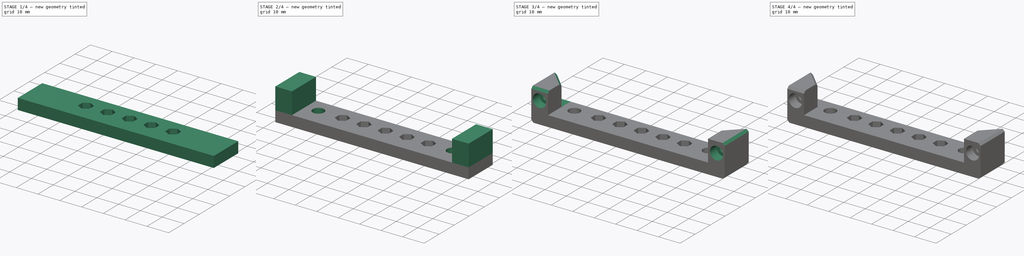
[diagram: build sequence overview — one tinted view per stage of 4, left to right]
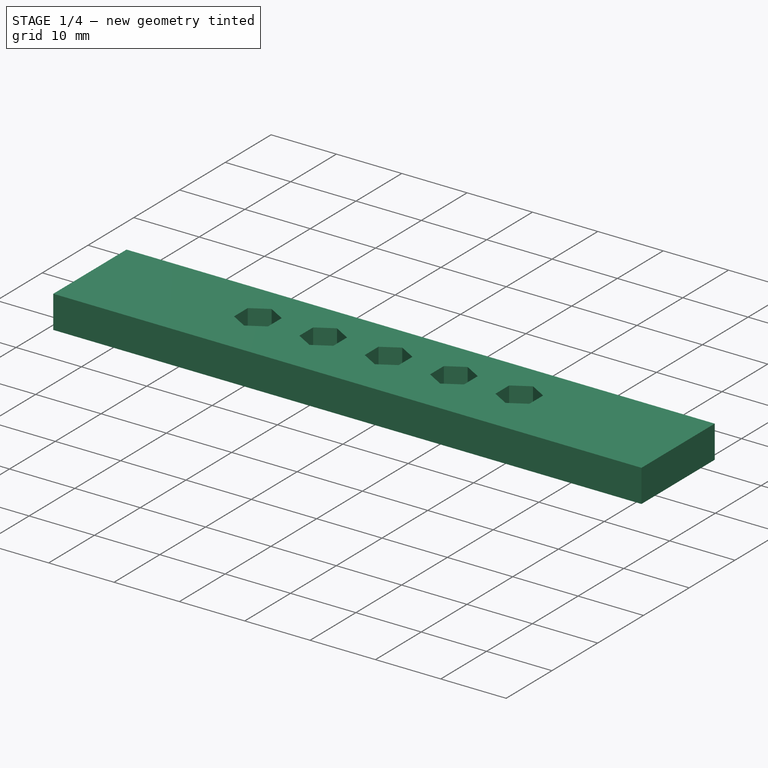
[diagram: stage 1 of 4 — iso view after this stage's code; geometry added in this stage tinted green]
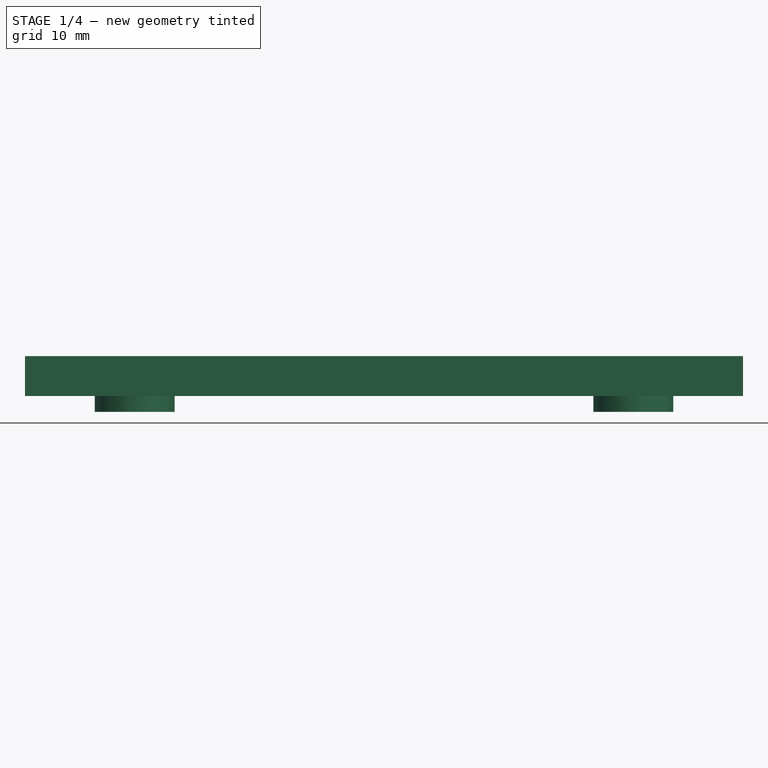
[diagram: stage 1 of 4 — front view after this stage's code; geometry added in this stage tinted green]
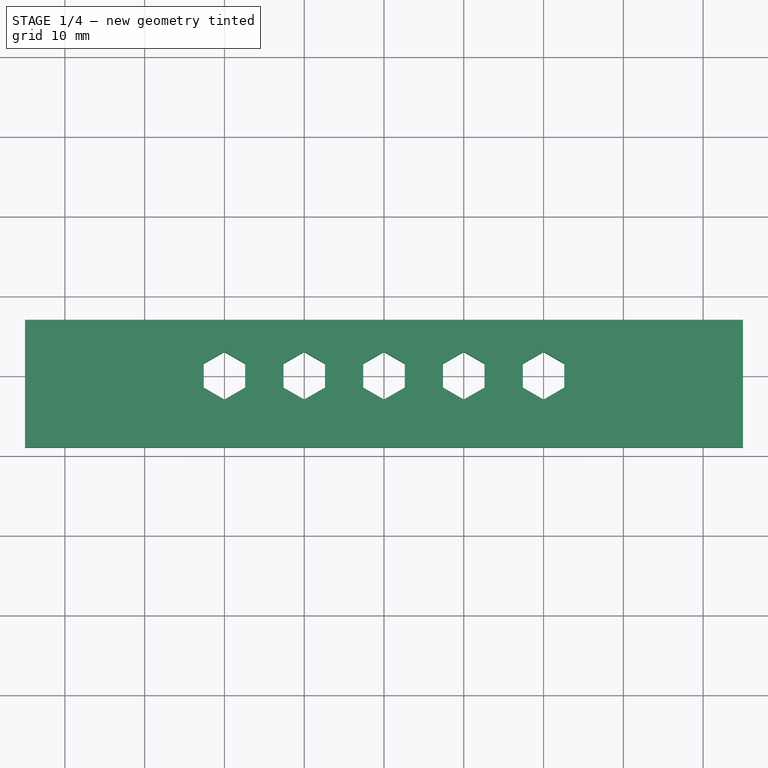
[diagram: stage 1 of 4 — top view after this stage's code; geometry added in this stage tinted green]
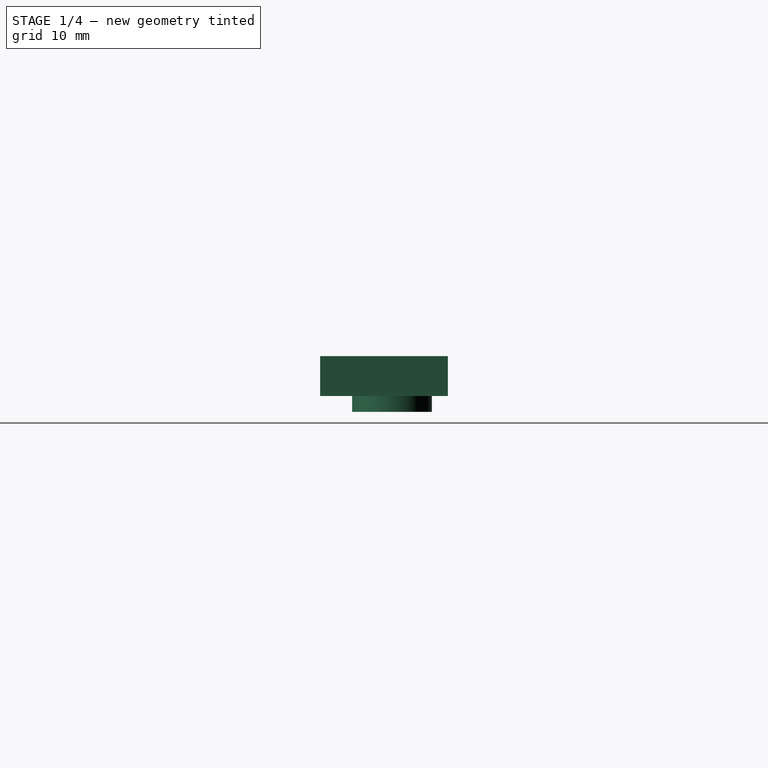
[diagram: stage 1 of 4 — right view after this stage's code; geometry added in this stage tinted green]
FCSTD DOCUMENT  (FreeCAD 0.19R24291 (Git))
Label: FDM-0044_x-gantry-tension-bar
License: All rights reserved
LicenseURL: http://en.wikipedia.org/wiki/All_rights_reserved
objects: Sketcher::SketchObject×5, PartDesign::Pad×3, PartDesign::Chamfer×3, PartDesign::Hole×2, PartDesign::Plane×2, Part::Part2DObjectPython×1, PartDesign::Pocket×1, PartDesign::Body×1
note: 27 computed .brp shape members not serialized (recipe doc carries the construction recipe); baked Part::Feature solids carry a one-line shape summary decoded from their .brp

FEATURE [Sketcher::SketchObject] Sketch  label="Base"
  FullyConstrained = true
  MapMode = 2
  sketch-geometry (39):
    g0: LineSegment StartX=45 StartY=7 StartZ=0 EndX=45 EndY=-9 EndZ=0
    g1: LineSegment StartX=45 StartY=-9 StartZ=0 EndX=-45 EndY=-9 EndZ=0
    g2: LineSegment StartX=-45 StartY=-9 StartZ=0 EndX=-45 EndY=7 EndZ=0
    g3: LineSegment StartX=-45 StartY=7 StartZ=0 EndX=45 EndY=7 EndZ=0
    g4: LineSegment StartX=2.59808 StartY=-1.5 StartZ=0 EndX=2.59808 EndY=1.5 EndZ=0
    g5: LineSegment StartX=2.59808 StartY=1.5 StartZ=0 EndX=0 EndY=3 EndZ=0
    g6: LineSegment StartX=0 StartY=3 StartZ=0 EndX=-2.59808 EndY=1.5 EndZ=0
    g7: LineSegment StartX=-2.59808 StartY=1.5 StartZ=0 EndX=-2.59808 EndY=-1.5 EndZ=0
    g8: LineSegment StartX=-2.59808 StartY=-1.5 StartZ=0 EndX=-4e-16 EndY=-3 EndZ=0
    g9: LineSegment StartX=-4e-16 StartY=-3 StartZ=0 EndX=2.59808 EndY=-1.5 EndZ=0
    g10: Circle CenterX=0 CenterY=0 CenterZ=0 NormalX=0 NormalY=0 NormalZ=1 AngleXU=0 Radius=3
    g11: LineSegment StartX=12.5981 StartY=-1.5 StartZ=0 EndX=12.5981 EndY=1.5 EndZ=0
    g12: LineSegment StartX=12.5981 StartY=1.5 StartZ=0 EndX=10 EndY=3 EndZ=0
    g13: LineSegment StartX=10 StartY=3 StartZ=0 EndX=7.40192 EndY=1.5 EndZ=0
    g14: LineSegment StartX=7.40192 StartY=1.5 StartZ=0 EndX=7.40192 EndY=-1.5 EndZ=0
    g15: LineSegment StartX=7.40192 StartY=-1.5 StartZ=0 EndX=10 EndY=-3 EndZ=0
    g16: LineSegment StartX=10 StartY=-3 StartZ=0 EndX=12.5981 EndY=-1.5 EndZ=0
    g17: Circle CenterX=10 CenterY=0 CenterZ=0 NormalX=0 NormalY=0 NormalZ=1 AngleXU=0 Radius=3
    g18: LineSegment StartX=22.5981 StartY=-1.5 StartZ=0 EndX=22.5981 EndY=1.5 EndZ=0
    g19: LineSegment StartX=22.5981 StartY=1.5 StartZ=0 EndX=20 EndY=3 EndZ=0
    g20: LineSegment StartX=20 StartY=3 StartZ=0 EndX=17.4019 EndY=1.5 EndZ=0
    g21: LineSegment StartX=17.4019 StartY=1.5 StartZ=0 EndX=17.4019 EndY=-1.5 EndZ=0
    g22: LineSegment StartX=17.4019 StartY=-1.5 StartZ=0 EndX=20 EndY=-3 EndZ=0
    g23: LineSegment StartX=20 StartY=-3 StartZ=0 EndX=22.5981 EndY=-1.5 EndZ=0
    g24: Circle CenterX=20 CenterY=0 CenterZ=0 NormalX=0 NormalY=0 NormalZ=1 AngleXU=0 Radius=3
    g25: LineSegment StartX=-12.5981 StartY=-1.5 StartZ=0 EndX=-10 EndY=-3 EndZ=0
    g26: LineSegment StartX=-10 StartY=-3 StartZ=0 EndX=-7.40192 EndY=-1.5 EndZ=0
    g27: LineSegment StartX=-7.40192 StartY=-1.5 StartZ=0 EndX=-7.40192 EndY=1.5 EndZ=0
    g28: LineSegment StartX=-7.40192 StartY=1.5 StartZ=0 EndX=-10 EndY=3 EndZ=0
    g29: LineSegment StartX=-10 StartY=3 StartZ=0 EndX=-12.5981 EndY=1.5 EndZ=0
    g30: LineSegment StartX=-12.5981 StartY=1.5 StartZ=0 EndX=-12.5981 EndY=-1.5 EndZ=0
    g31: Circle CenterX=-10 CenterY=0 CenterZ=0 NormalX=0 NormalY=0 NormalZ=1 AngleXU=0 Radius=3
    g32: LineSegment StartX=-22.5981 StartY=-1.5 StartZ=0 EndX=-20 EndY=-3 EndZ=0
    g33: LineSegment StartX=-20 StartY=-3 StartZ=0 EndX=-17.4019 EndY=-1.5 EndZ=0
    g34: LineSegment StartX=-17.4019 StartY=-1.5 StartZ=0 EndX=-17.4019 EndY=1.5 EndZ=0
    g35: LineSegment StartX=-17.4019 StartY=1.5 StartZ=0 EndX=-20 EndY=3 EndZ=0
    g36: LineSegment StartX=-20 StartY=3 StartZ=0 EndX=-22.5981 EndY=1.5 EndZ=0
    g37: LineSegment StartX=-22.5981 StartY=1.5 StartZ=0 EndX=-22.5981 EndY=-1.5 EndZ=0
    g38: Circle CenterX=-20 CenterY=0 CenterZ=0 NormalX=0 NormalY=0 NormalZ=1 AngleXU=0 Radius=3
  constraints (95):
    c: Coincident(g0,g1)
    c: Coincident(g1,g2)
    c: Horizontal(g1)
    c: Vertical(g0)
    c: Vertical(g2)
    c: DistanceX(g2,g0) = 90
    c: Symmetric(g2,g0,g-2)
    c: DistanceY(g0,g0) = 16
    c: Coincident(g3,g0)
    c: Coincident(g3,g2)
    c: DistanceY(g-1,g0) = 7
    c: Coincident(g4,g5)
    c: Coincident(g5,g6)
    c: Coincident(g6,g7)
    c: Coincident(g7,g8)
    c: Coincident(g8,g9)
    c: Coincident(g9,g4)
    c: Equal(g4, g5-g9) x5
    c: PointOnObject(g4,g10)
    c: PointOnObject(g5,g10)
    c: PointOnObject(g6,g10)
    c: PointOnObject(g7,g10)
    c: PointOnObject(g8,g10)
    c: PointOnObject(g9,g10)
    c: Coincident(g10,g-1)
    c: Coincident(g11,g12)
    c: Coincident(g12,g13)
    c: Coincident(g13,g14)
    c: Coincident(g14,g15)
    c: Coincident(g15,g16)
    c: Coincident(g16,g11)
    c: Equal(g11, g12-g16) x5
    c: PointOnObject(g11,g17)
    c: PointOnObject(g12,g17)
    c: PointOnObject(g13,g17)
    c: PointOnObject(g14,g17)
    c: PointOnObject(g15,g17)
    c: PointOnObject(g16,g17)
    c: PointOnObject(g17,g-1)
    c: Coincident(g18,g19)
    c: Coincident(g19,g20)
    c: Coincident(g20,g21)
    c: Coincident(g21,g22)
    c: Coincident(g22,g23)
    c: Coincident(g23,g18)
    c: Equal(g18, g19-g23) x5
    c: PointOnObject(g18,g24)
    c: PointOnObject(g19,g24)
    c: PointOnObject(g20,g24)
    c: PointOnObject(g21,g24)
    c: PointOnObject(g22,g24)
    c: PointOnObject(g23,g24)
    c: PointOnObject(g24,g-1)
    c: Coincident(g25,g26)
    c: Coincident(g26,g27)
    c: Coincident(g27,g28)
    c: Coincident(g28,g29)
    c: Coincident(g29,g30)
    c: Coincident(g30,g25)
    c: Equal(g25, g26-g30) x5
    c: PointOnObject(g25,g31)
    c: PointOnObject(g26,g31)
    c: PointOnObject(g27,g31)
    c: PointOnObject(g28,g31)
    c: PointOnObject(g29,g31)
    c: PointOnObject(g30,g31)
    c: PointOnObject(g31,g-1)
    c: Coincident(g32,g33)
    c: Coincident(g33,g34)
    c: Coincident(g34,g35)
    c: Coincident(g35,g36)
    c: Coincident(g36,g37)
    c: Coincident(g37,g32)
    c: Equal(g32, g33-g37) x5
    c: PointOnObject(g32,g38)
    c: PointOnObject(g33,g38)
    c: PointOnObject(g34,g38)
    c: PointOnObject(g35,g38)
    c: PointOnObject(g36,g38)
    c: PointOnObject(g37,g38)
    c: PointOnObject(g38,g-1)
    c: Diameter(g10) = 6
    c: Equal(g10,g31)
    c: Equal(g31,g38)
    c: Equal(g38,g17)
    c: Equal(g17,g24)
    c: DistanceX(g31,g10) = 10
    c: DistanceX(g38,g31) = 10
    c: DistanceX(g10,g17) = 10
    c: DistanceX(g17,g24) = 10
    c: Horizontal(g32,g33)
    c: Horizontal(g33,g25)
    c: Horizontal(g26,g7)
    c: Horizontal(g4,g14)
    c: Horizontal(g11,g21)
FEATURE [PartDesign::Pad] Pad
  Direction = (1,1,1)
  Length = 5
  Length2 = 100
  Profile = -> Sketch
  Type = 0
FEATURE [Sketcher::SketchObject] Sketch001  label="Arms"
  FullyConstrained = true
  MapMode = 2
  Placement = pos=(0,0,5) rot=(0,0,1;0rad)
  sketch-geometry (8):
    g0: LineSegment StartX=-45 StartY=7 StartZ=0 EndX=-37.25 EndY=7 EndZ=0
    g1: LineSegment StartX=-37.25 StartY=7 StartZ=0 EndX=-37.25 EndY=-9 EndZ=0
    g2: LineSegment StartX=-37.25 StartY=-9 StartZ=0 EndX=-45 EndY=-9 EndZ=0
    g3: LineSegment StartX=-45 StartY=-9 StartZ=0 EndX=-45 EndY=7 EndZ=0
    g4: LineSegment StartX=45 StartY=7 StartZ=0 EndX=37.25 EndY=7 EndZ=0
    g5: LineSegment StartX=37.25 StartY=7 StartZ=0 EndX=37.25 EndY=-9 EndZ=0
    g6: LineSegment StartX=37.25 StartY=-9 StartZ=0 EndX=45 EndY=-9 EndZ=0
    g7: LineSegment StartX=45 StartY=-9 StartZ=0 EndX=45 EndY=7 EndZ=0
  constraints (23):
    c: Coincident(g0,g1)
    c: Coincident(g1,g2)
    c: Coincident(g2,g3)
    c: Coincident(g3,g0)
    c: Horizontal(g0)
    c: Horizontal(g2)
    c: Vertical(g1)
    c: Vertical(g3)
    c: Coincident(g4,g5)
    c: Coincident(g5,g6)
    c: Coincident(g6,g7)
    c: Coincident(g7,g4)
    c: Horizontal(g4)
    c: Horizontal(g6)
    c: Vertical(g5)
    c: Vertical(g7)
    c: Equal(g0,g4)
    c: Equal(g1,g7)
    c: Symmetric(g0,g4,g-2)
    c: DistanceX(g0,g4) = 90
    c: DistanceX(g1,g5) = 74.5
    c: DistanceY(g3,g3) = 16
    c: DistanceY(g-1,g0) = 7
FEATURE [Sketcher::SketchObject] Sketch003
  FullyConstrained = true
  MapMode = 2
  sketch-geometry (2):
    g0: Circle CenterX=-31.25 CenterY=0 CenterZ=0 NormalX=0 NormalY=0 NormalZ=1 AngleXU=0 Radius=5
    g1: Circle CenterX=31.25 CenterY=0 CenterZ=0 NormalX=0 NormalY=0 NormalZ=1 AngleXU=0 Radius=5
  constraints (5):
    c: PointOnObject(g0,g-1)
    c: Equal(g0,g1)
    c: Diameter(g1) = 10
    c: DistanceX(g0,g1) = 62.5
    c: Symmetric(g0,g1,g-2)
FEATURE [PartDesign::Pad] Pad002
  BaseFeature = -> Pad
  Direction = (1,1,1)
  Length = 2
  Length2 = 100
  Profile = -> Sketch003
  Reversed = true
  Type = 0
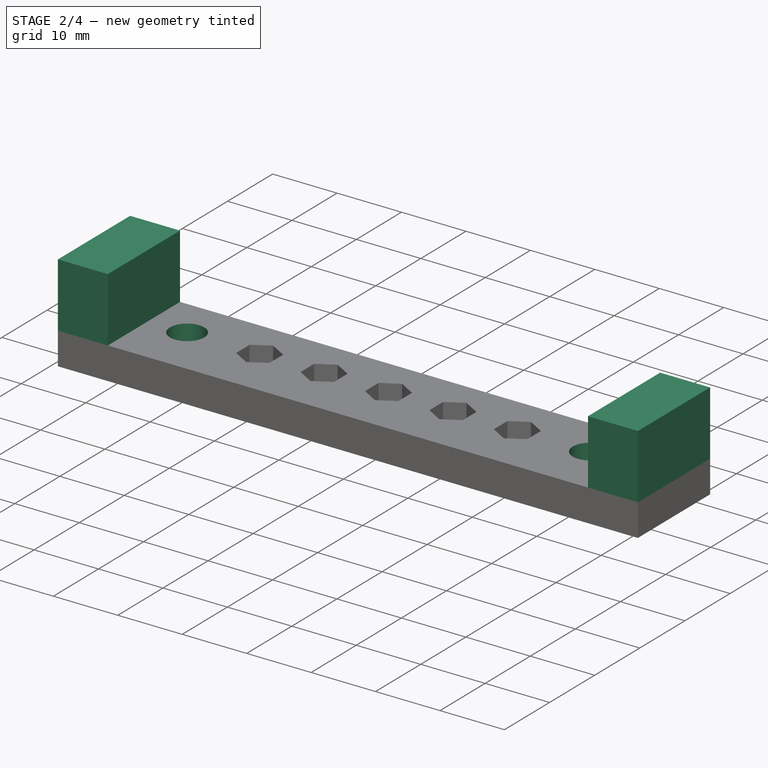
[diagram: stage 2 of 4 — iso view after this stage's code; geometry added in this stage tinted green]
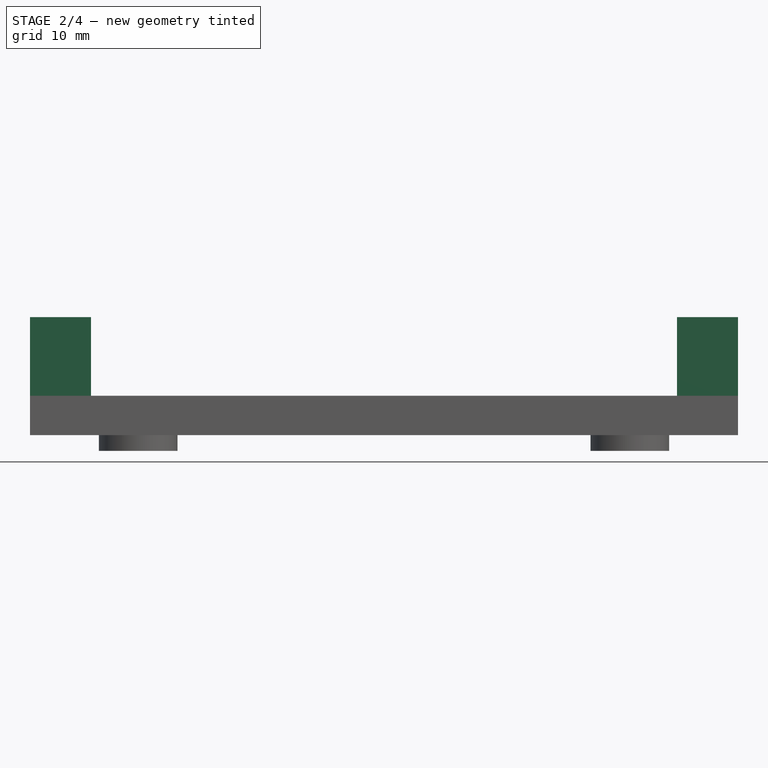
[diagram: stage 2 of 4 — front view after this stage's code; geometry added in this stage tinted green]
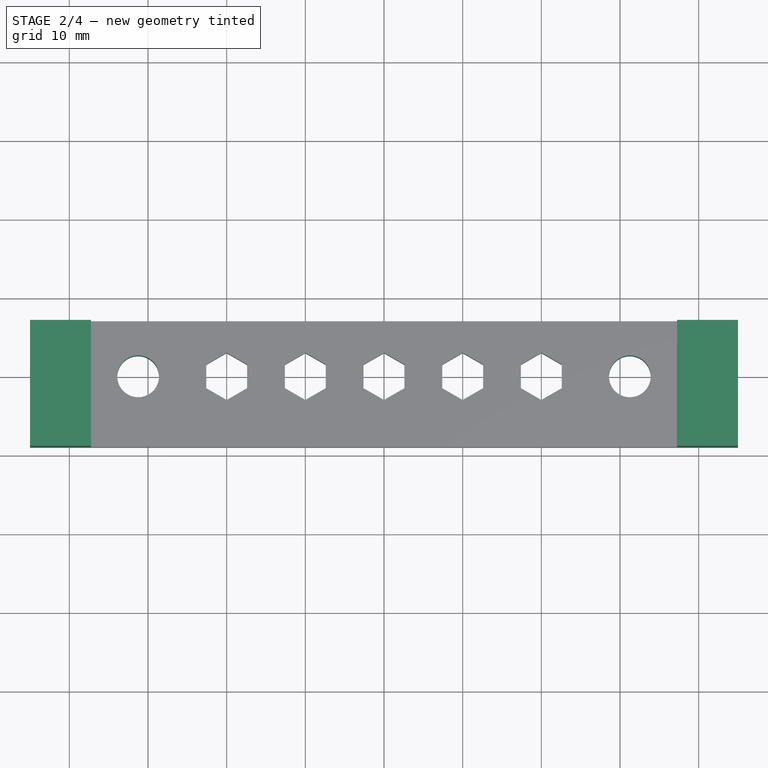
[diagram: stage 2 of 4 — top view after this stage's code; geometry added in this stage tinted green]
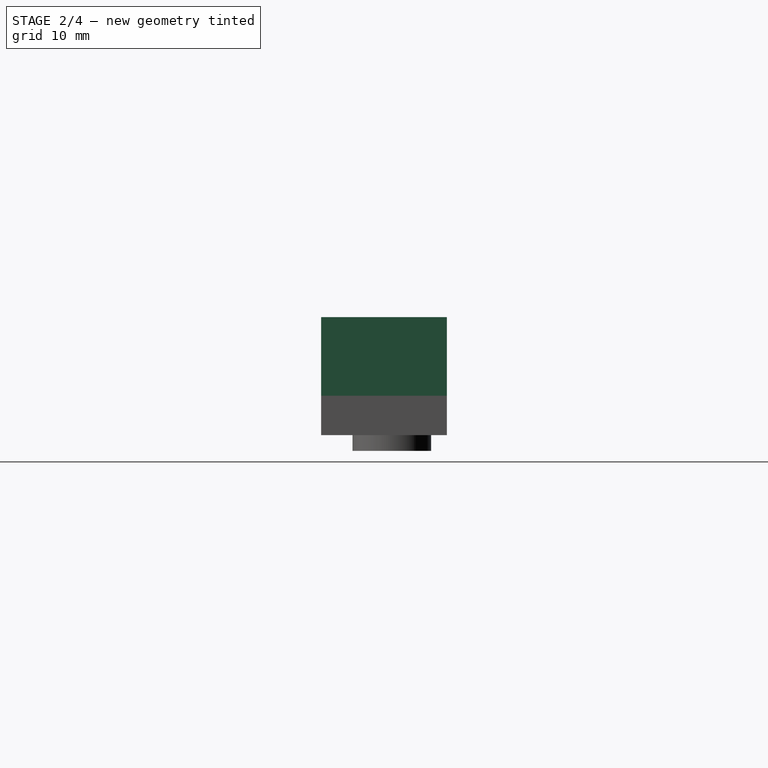
[diagram: stage 2 of 4 — right view after this stage's code; geometry added in this stage tinted green]
FEATURE [PartDesign::Pad] Pad001
  BaseFeature = -> Pad002
  Direction = (1,1,1)
  Length = 10
  Length2 = 100
  Profile = -> Sketch001
  Type = 0
FEATURE [Sketcher::SketchObject] Sketch004
  FullyConstrained = true
  MapMode = 2
  Placement = pos=(0,0,-2) rot=(0,0,1;0rad)
  sketch-geometry (2):
    g0: Circle CenterX=-31.25 CenterY=0 CenterZ=0 NormalX=0 NormalY=0 NormalZ=1 AngleXU=0 Radius=2.5
    g1: Circle CenterX=31.25 CenterY=0 CenterZ=0 NormalX=0 NormalY=0 NormalZ=1 AngleXU=0 Radius=2.5
  constraints (5):
    c: PointOnObject(g0,g-1)
    c: Diameter(g0) = 5
    c: Equal(g0,g1)
    c: DistanceX(g0,g1) = 62.5
    c: Symmetric(g0,g1,g-2)
FEATURE [PartDesign::Hole] Hole001
  BaseFeature = -> Pad001
  Depth = 25
  DepthType = 0
  Diameter = 5.3
  DrillForDepth = false
  DrillPoint = 0
  DrillPointAngle = 118
  HoleCutCountersinkAngle = 90
  HoleCutCustomValues = false
  HoleCutDepth = 0
  HoleCutDiameter = 6.1
  HoleCutType = 0
  ModelActualThread = false
  Profile = -> Sketch004
  Reversed = true
  Tapered = false
  TaperedAngle = 90
  ThreadAngle = 0
  ThreadClass = 0
  ThreadCutOffInner = 0
  ThreadCutOffOuter = 0
  ThreadDirection = 0
  ThreadFit = 1
  ThreadPitch = 0
  ThreadSize = 13
  ThreadType = 1
  Threaded = false
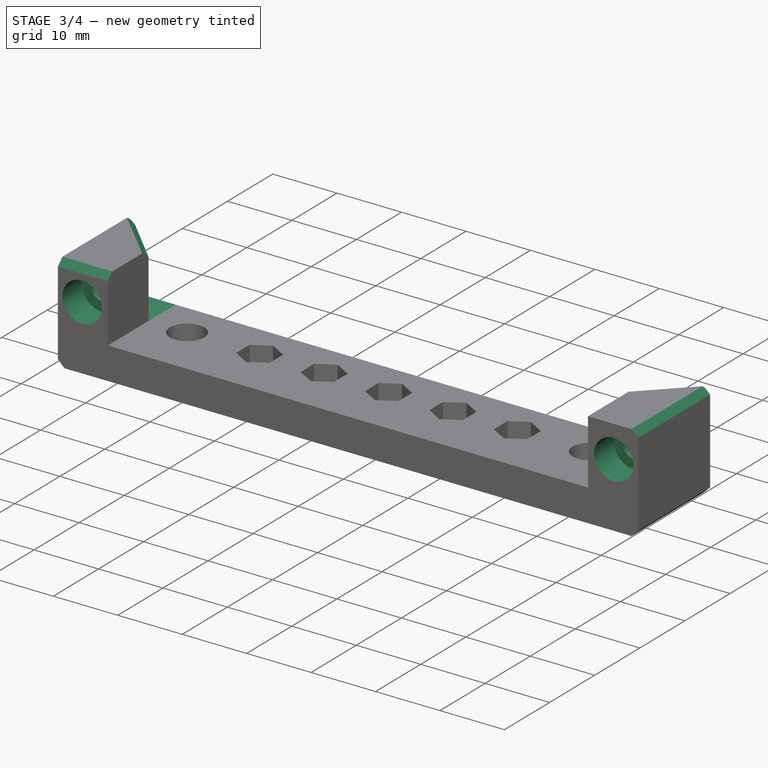
[diagram: stage 3 of 4 — iso view after this stage's code; geometry added in this stage tinted green]
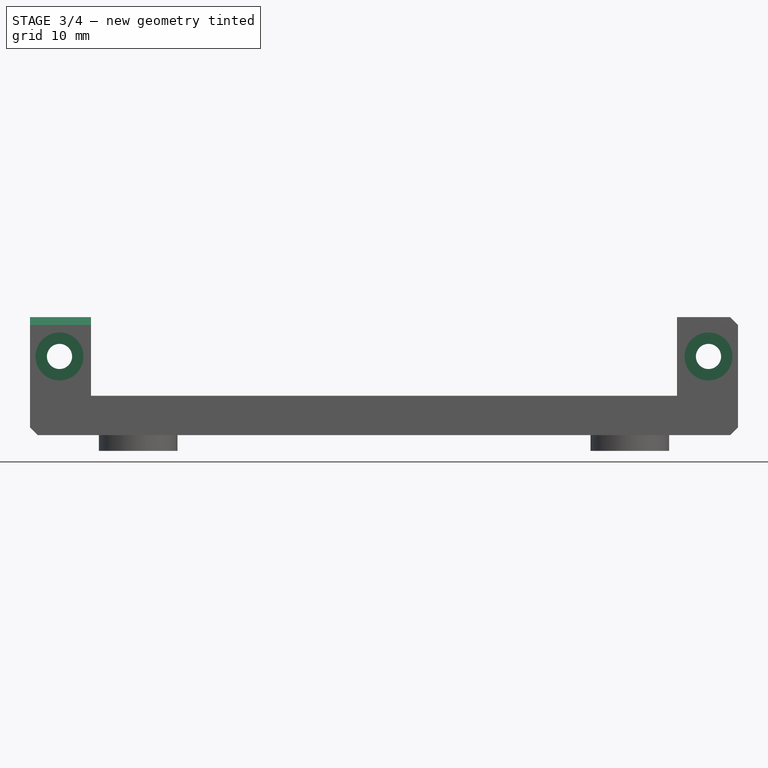
[diagram: stage 3 of 4 — front view after this stage's code; geometry added in this stage tinted green]
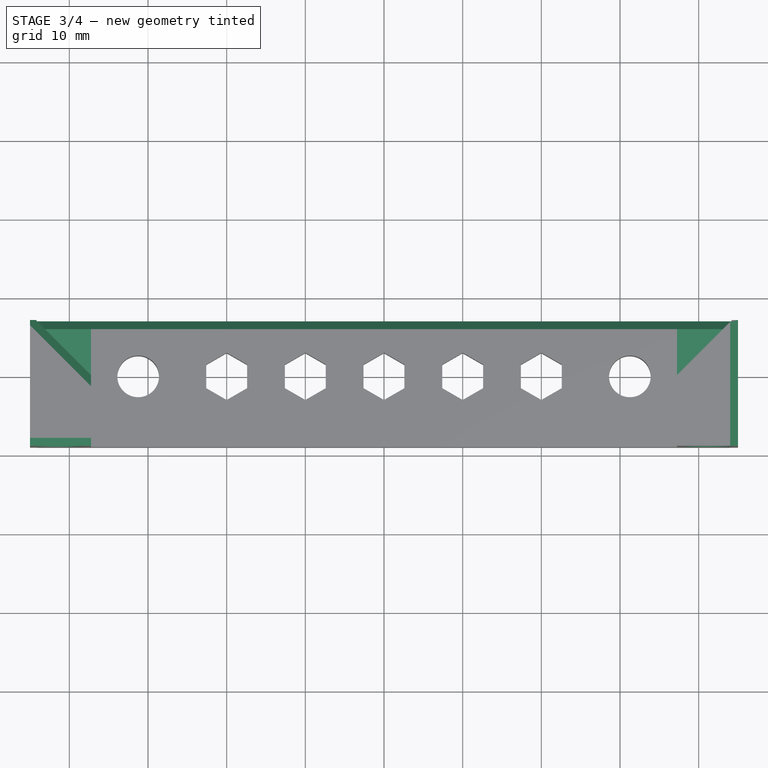
[diagram: stage 3 of 4 — top view after this stage's code; geometry added in this stage tinted green]
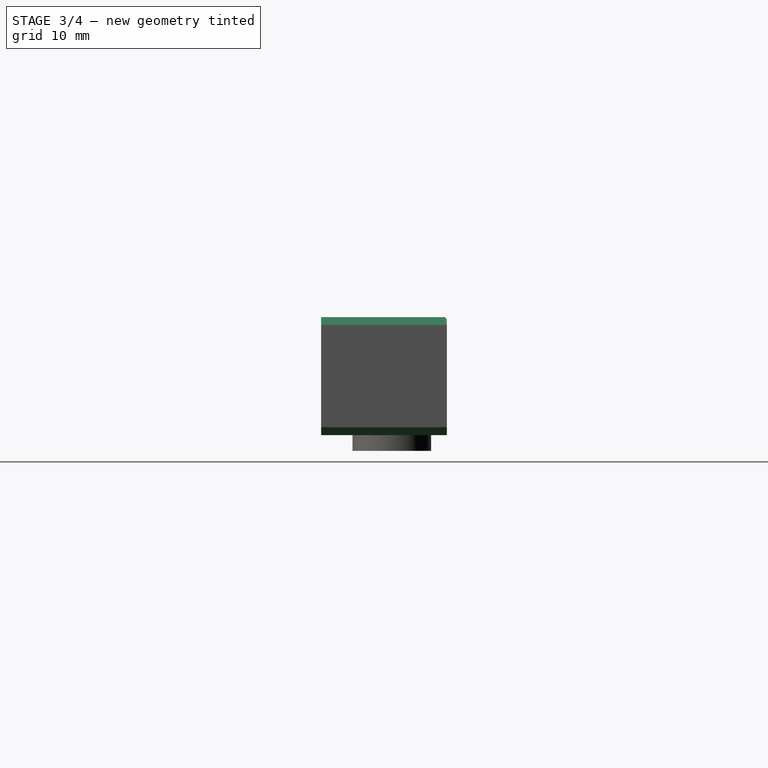
[diagram: stage 3 of 4 — right view after this stage's code; geometry added in this stage tinted green]
FEATURE [PartDesign::Chamfer] Chamfer
  Angle = 45
  Base = -> Hole001 [Edge89,Edge53]
  BaseFeature = -> Hole001
  ChamferType = 0
  FlipDirection = false
  Size = 7
  Size2 = 1
  SupportTransform = false
FEATURE [PartDesign::Chamfer] Chamfer001
  Angle = 45
  Base = -> Chamfer [Edge140,Edge61,Edge7,Edge5,Edge16,Edge135,Edge59]
  BaseFeature = -> Chamfer
  ChamferType = 0
  FlipDirection = false
  Size = 1
  Size2 = 1
  SupportTransform = false
FEATURE [PartDesign::Plane] DatumPlane  label="Datum"
  Length = 103.416
  MapMode = 5
  Placement = pos=(0,-9,0) rot=(1,0,0;1.5708rad)
  ResizeMode = 0
  Support = -> [Chamfer001]
  Width = 63.4164
FEATURE [Sketcher::SketchObject] Sketch002
  FullyConstrained = true
  MapMode = 5
  Placement = pos=(0,-9,0) rot=(1,0,0;1.5708rad)
  Support = -> [DatumPlane]
  sketch-geometry (2):
    g0: Circle CenterX=-41.25 CenterY=10 CenterZ=0 NormalX=0 NormalY=0 NormalZ=1 AngleXU=0 Radius=1.75
    g1: Circle CenterX=41.25 CenterY=10 CenterZ=0 NormalX=0 NormalY=0 NormalZ=1 AngleXU=0 Radius=1.75
  constraints (5):
    c: Symmetric(g0,g1,g-2)
    c: Equal(g0,g1)
    c: Diameter(g0) = 3.5
    c: DistanceX(g0,g1) = 82.5
    c: DistanceY(g-1,g0) = 10
FEATURE [PartDesign::Hole] Hole
  BaseFeature = -> Chamfer001
  Depth = 25
  DepthType = 0
  Diameter = 3.2
  DrillForDepth = false
  DrillPoint = 0
  DrillPointAngle = 118
  HoleCutCountersinkAngle = 90
  HoleCutCustomValues = false
  HoleCutDepth = 4.4
  HoleCutDiameter = 6.1
  HoleCutType = 1
  ModelActualThread = false
  Profile = -> Sketch002
  Tapered = false
  TaperedAngle = 90
  ThreadAngle = 0
  ThreadClass = 0
  ThreadCutOffInner = 0
  ThreadCutOffOuter = 0
  ThreadDirection = 0
  ThreadFit = 1
  ThreadPitch = 0
  ThreadSize = 9
  ThreadType = 1
  Threaded = false
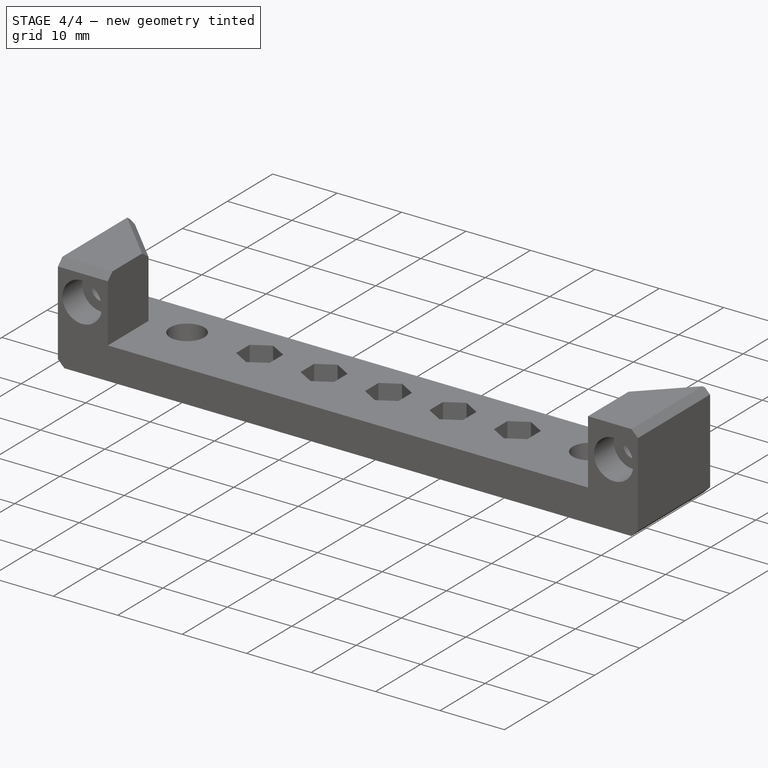
[diagram: stage 4 of 4 — iso view after this stage's code; geometry added in this stage tinted green]
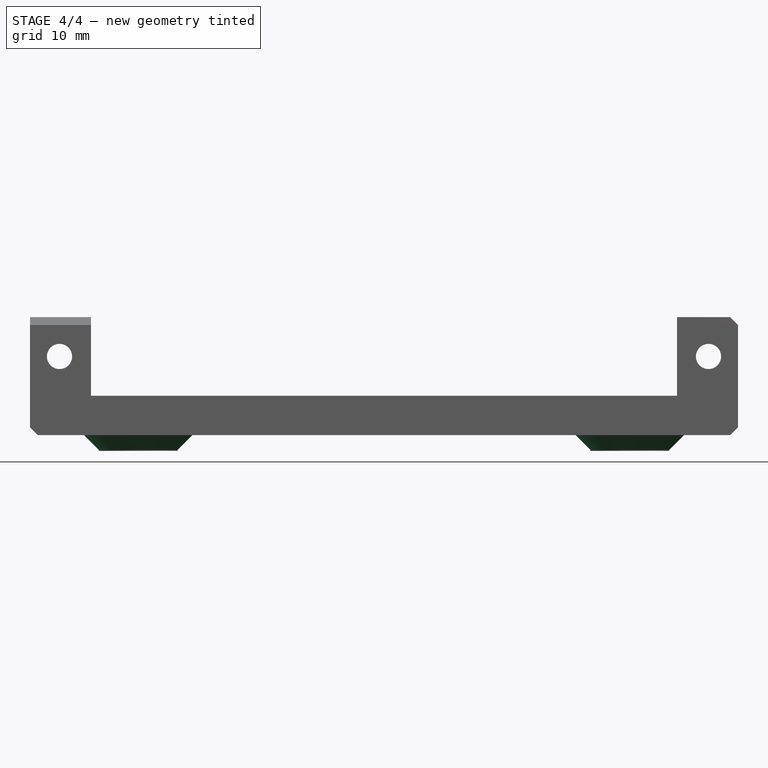
[diagram: stage 4 of 4 — front view after this stage's code; geometry added in this stage tinted green]
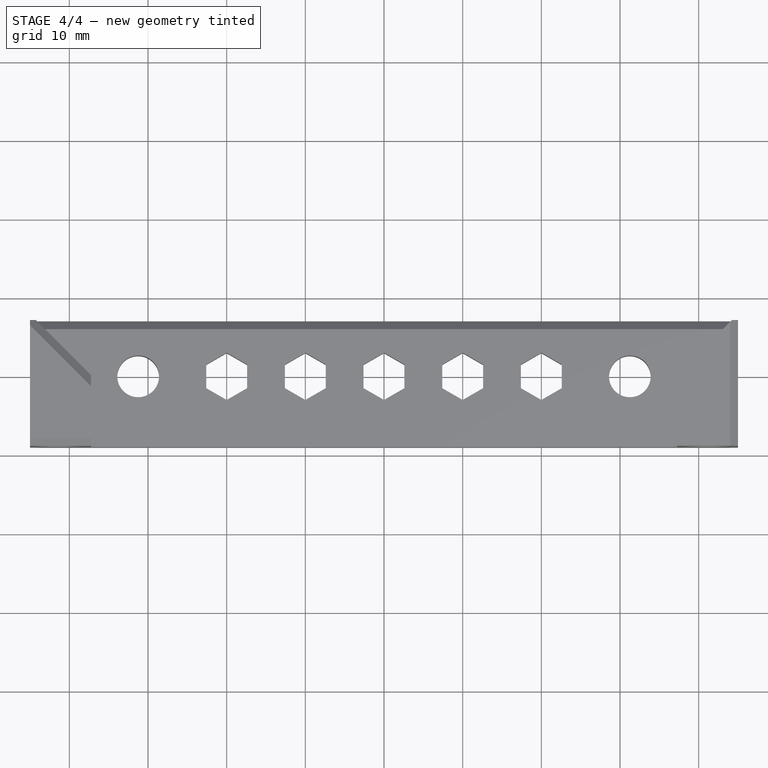
[diagram: stage 4 of 4 — top view after this stage's code; geometry added in this stage tinted green]
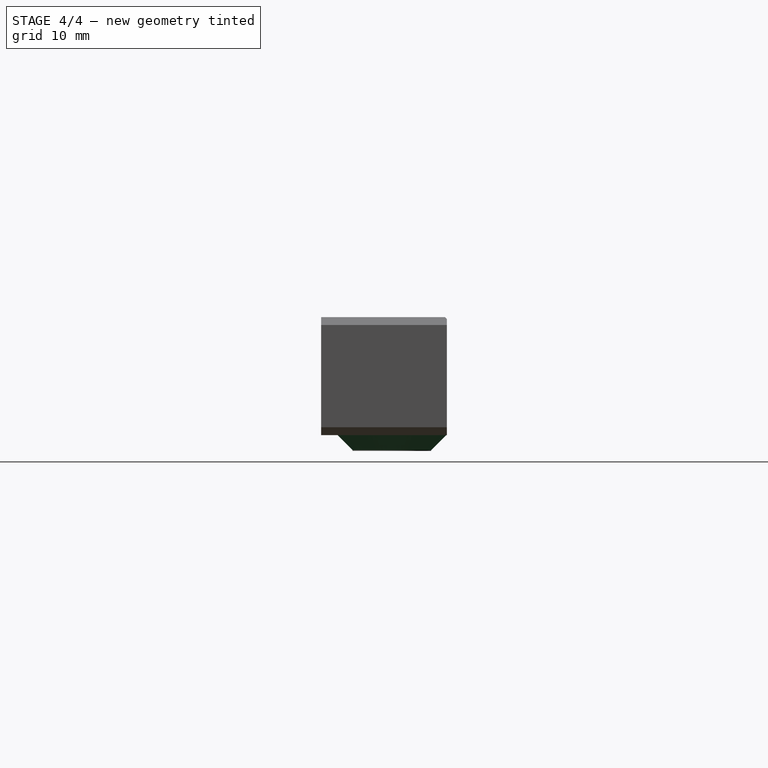
[diagram: stage 4 of 4 — right view after this stage's code; geometry added in this stage tinted green]
FEATURE [PartDesign::Chamfer] Chamfer002
  Angle = 45
  Base = -> Hole [Edge120,Edge89]
  BaseFeature = -> Hole
  ChamferType = 0
  FlipDirection = false
  Size = 1.9
  Size2 = 1
  SupportTransform = false
FEATURE [Part::Part2DObjectPython] ShapeString  label="PN"  # Draft 2D object (typed FeaturePython)
  FontFile = ../../lib/fonts/RobotoMono-VariableFont_weight.ttf
  Placement = pos=(20,-8,0) rot=(0,1,0;3.14159rad)
  Size = 4.8
  String = FDM-0044-01
  Tracking = 0
FEATURE [PartDesign::Pocket] Pocket
  BaseFeature = -> Chamfer002
  Length = 0.5
  Length2 = 100
  Profile = -> ShapeString
  Type = 0
FEATURE [PartDesign::Plane] DatumPlane001  label="PrintPlane"
  Length = 103.416
  MapMode = 5
  Placement = pos=(0,-9,0) rot=(1,0,0;1.5708rad)
  ResizeMode = 0
  Support = -> [Pocket]
  Width = 63.4164
FEATURE [PartDesign::Body] Body
  Group = -> [Sketch,Pad,Pad002,Sketch001,Pad001,Hole001,Chamfer,Chamfer001,DatumPlane,Sketch002,Hole,Chamfer002,Sketch003,Sketch004,ShapeString,Pocket,DatumPlane001]
  Origin = -> Origin
  Tip = -> Pocket
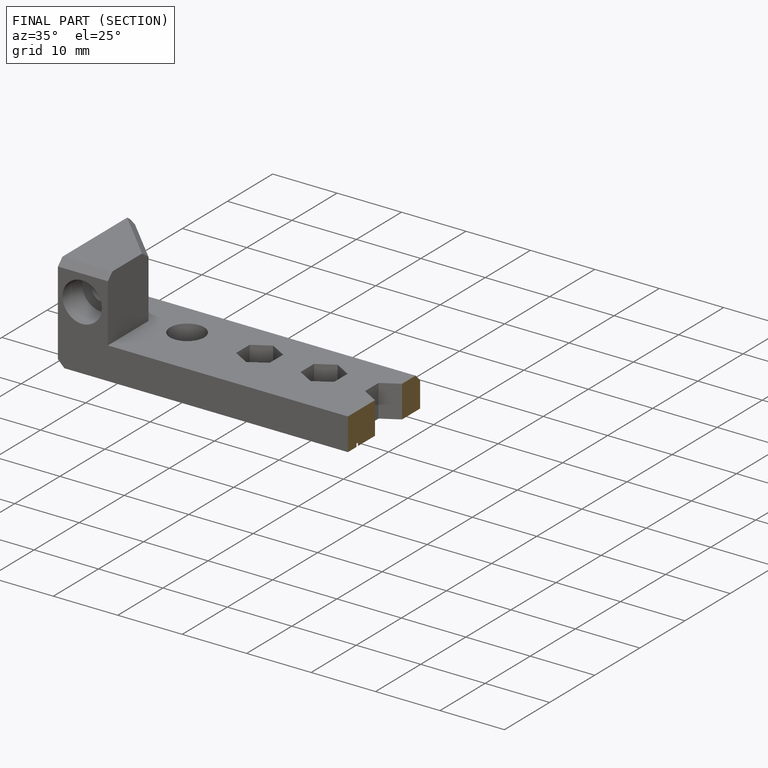
[diagram: finished part — half-section view (interior)]
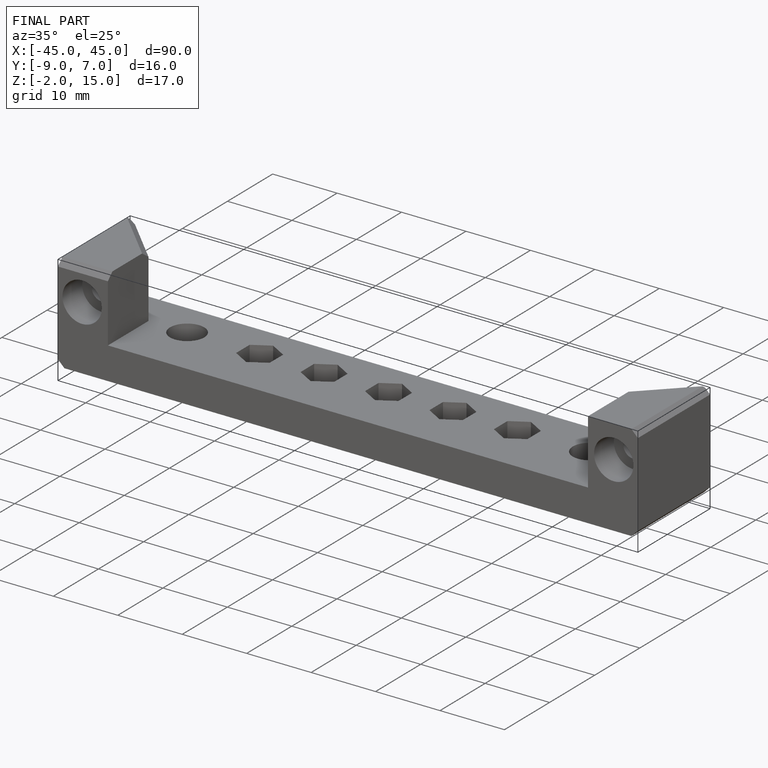
[diagram: finished part — iso view with bounding-box wireframe]
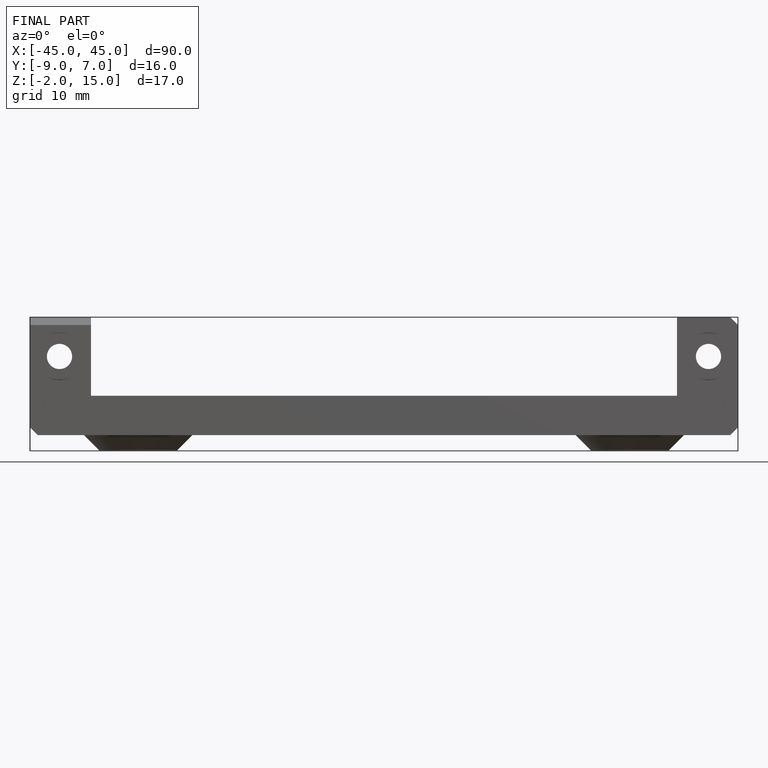
[diagram: finished part — front view with bounding-box wireframe]
